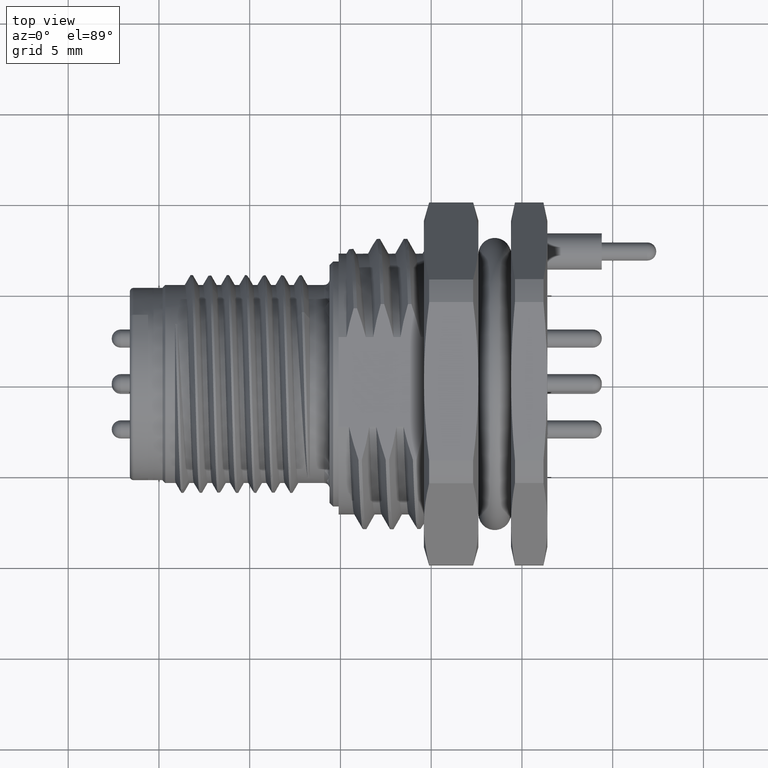
[diagram: clean part render]
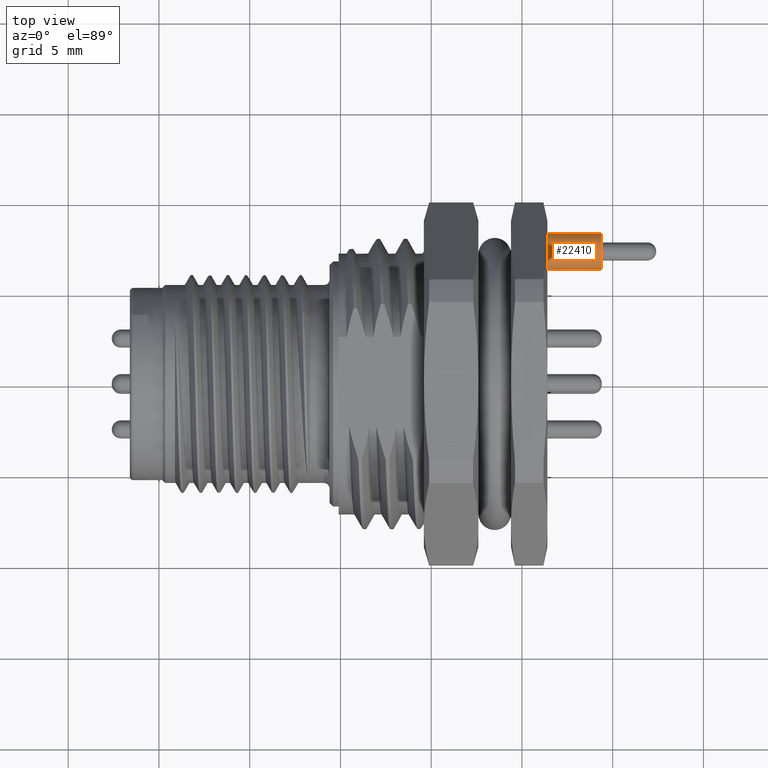
[diagram: same view with one face highlighted and labeled with its STEP entity id]
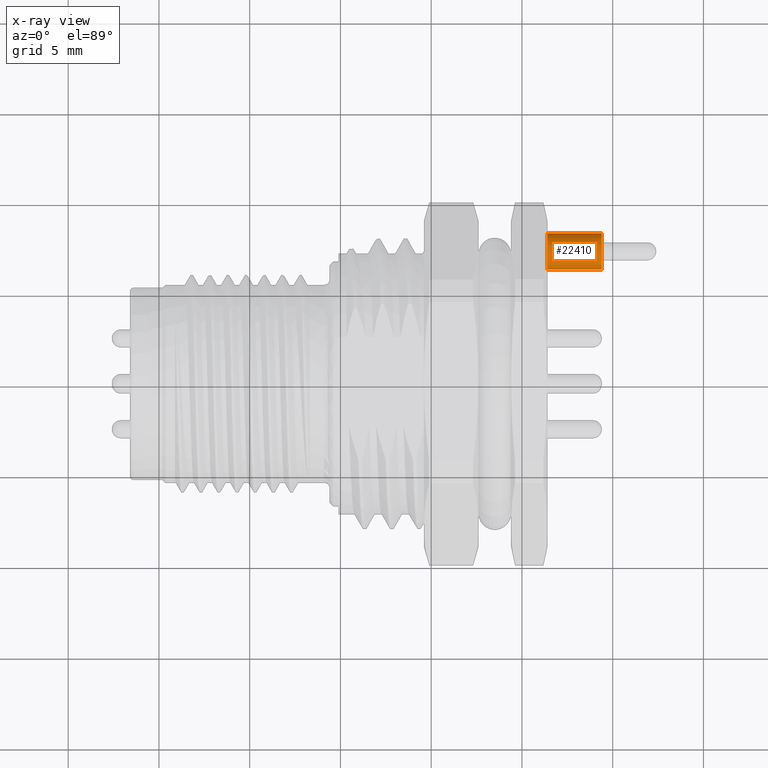
[diagram: x-ray of the same camera — body ghosted, the highlighted face saturated]
A machine part, top view. The second image highlights one B-rep face of the part: STEP entity #22410.
The next image is the same camera in x-ray: the body ghosted, the highlighted face saturated — about 0% of this face is hidden behind the body in this view.
In plain terms, the highlighted cylindrical surface (edge-blend (fillet) strip) has radius 1 mm, axis along (1, 0, 0).
Its self-contained STEP definition (entity closure, byte-faithful):
#5033=CARTESIAN_POINT('',(2.14E1,7.3E0,0.E0));
#5034=DIRECTION('',(1.E0,0.E0,0.E0));
#5035=DIRECTION('',(0.E0,1.E0,0.E0));
#5036=AXIS2_PLACEMENT_3D('',#5033,#5034,#5035);
#7639=DIRECTION('',(1.E0,0.E0,0.E0));
#7640=VECTOR('',#7639,3.E0);
#7641=CARTESIAN_POINT('',(2.14E1,8.3E0,0.E0));
#7642=LINE('',#7641,#7640);
#7643=DIRECTION('',(-1.E0,0.E0,0.E0));
#7644=VECTOR('',#7643,3.E0);
#7645=CARTESIAN_POINT('',(2.44E1,6.3E0,0.E0));
#7646=LINE('',#7645,#7644);
#7652=CARTESIAN_POINT('',(2.44E1,7.3E0,0.E0));
#7653=DIRECTION('',(-1.E0,0.E0,0.E0));
#7654=DIRECTION('',(0.E0,-1.E0,0.E0));
#7655=AXIS2_PLACEMENT_3D('',#7652,#7653,#7654);
#11029=CARTESIAN_POINT('',(2.44E1,8.3E0,0.E0));
#11030=CARTESIAN_POINT('',(2.44E1,6.3E0,0.E0));
#11031=VERTEX_POINT('',#11029);
#11032=VERTEX_POINT('',#11030);
#11181=CARTESIAN_POINT('',(2.14E1,6.3E0,0.E0));
#11182=CARTESIAN_POINT('',(2.14E1,8.3E0,0.E0));
#11183=VERTEX_POINT('',#11181);
#11184=VERTEX_POINT('',#11182);
#22398=CARTESIAN_POINT('',(2.134E1,7.3E0,0.E0));
#22399=DIRECTION('',(1.E0,0.E0,0.E0));
#22400=DIRECTION('',(0.E0,-1.E0,0.E0));
#22401=AXIS2_PLACEMENT_3D('',#22398,#22399,#22400);
#22402=CYLINDRICAL_SURFACE('',#22401,1.E0);
#22403=ORIENTED_EDGE('',*,*,#17302,.F.);
#22404=ORIENTED_EDGE('',*,*,#22393,.T.);
#22406=ORIENTED_EDGE('',*,*,#22405,.F.);
#22407=ORIENTED_EDGE('',*,*,#22389,.T.);
#22408=EDGE_LOOP('',(#22403,#22404,#22406,#22407));
#22409=FACE_OUTER_BOUND('',#22408,.F.);
#22410=ADVANCED_FACE('',(#22409),#22402,.T.);
#5037=CIRCLE('',#5036,1.E0);
#7656=CIRCLE('',#7655,1.E0);
#17302=EDGE_CURVE('',#11184,#11183,#5037,.T.);
#22389=EDGE_CURVE('',#11032,#11183,#7646,.T.);
#22393=EDGE_CURVE('',#11184,#11031,#7642,.T.);
#22405=EDGE_CURVE('',#11032,#11031,#7656,.T.);